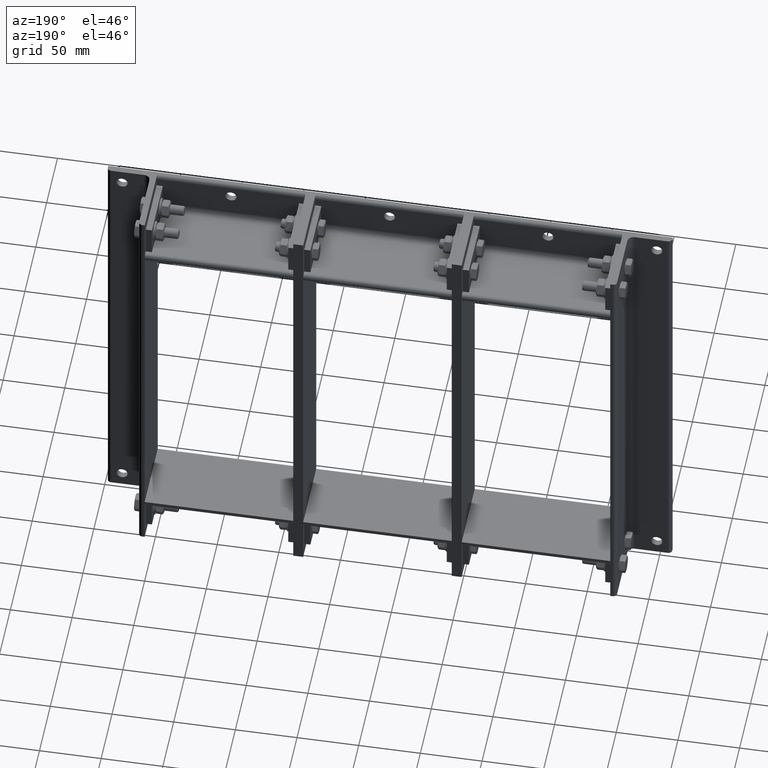
[diagram: clean part render]
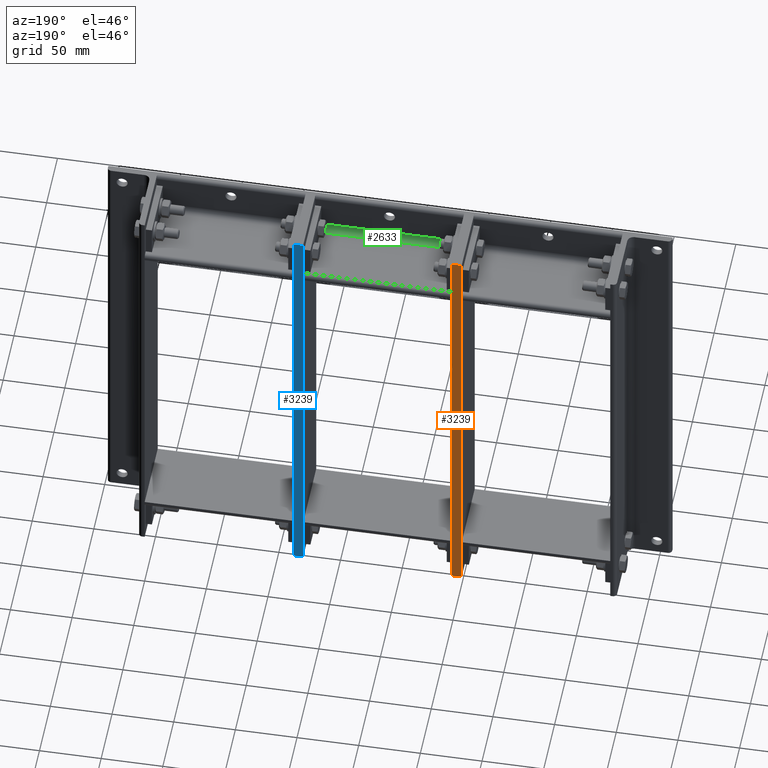
[diagram: same view with three faces highlighted in distinct colors, each labeled with its STEP entity id]
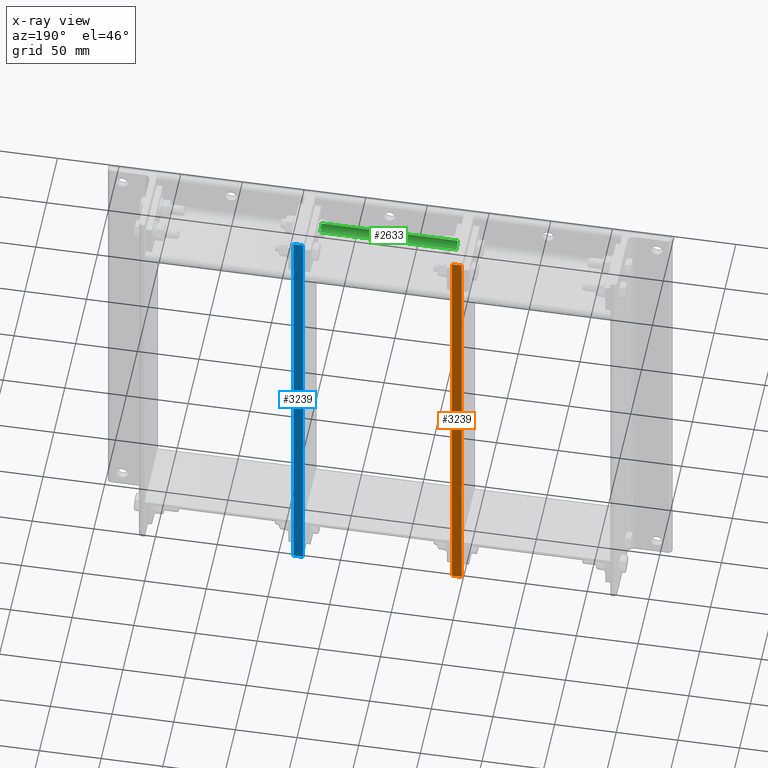
[diagram: x-ray of the same camera — body ghosted, the three highlighted faces saturated]
A machine part, auxiliary view with three faces highlighted in distinct colors.
The next image is the same camera in x-ray (body ghosted, the three faces saturated) — at least one of them is partly hidden behind the body in this view.
Their STEP definitions:

[orange] entity #3239 — the highlighted planar face has unit normal (-0, 1, 0).
#3164=CARTESIAN_POINT('',(-1.776357E-014,60.0,358.0));
#3165=VERTEX_POINT('',#3164);
#3172=CARTESIAN_POINT('',(-1.776357E-014,60.0,0.0));
#3173=VERTEX_POINT('',#3172);
#3174=CARTESIAN_POINT('',(-1.776357E-014,60.0,0.0));
#3175=DIRECTION('',(0.0,0.0,1.0));
#3176=VECTOR('',#3175,358.0);
#3177=LINE('',#3174,#3176);
#3178=EDGE_CURVE('',#3173,#3165,#3177,.T.);
#3209=CARTESIAN_POINT('',(-1.776357E-014,60.0,0.0));
#3210=DIRECTION('',(0.0,1.0,0.0));
#3211=DIRECTION('',(0.0,0.0,1.0));
#3212=AXIS2_PLACEMENT_3D('',#3209,#3210,#3211);
#3213=PLANE('',#3212);
#3214=CARTESIAN_POINT('',(7.999999999999981,60.0,358.0));
#3215=VERTEX_POINT('',#3214);
#3216=CARTESIAN_POINT('',(-1.776357E-014,60.0,358.0));
#3217=DIRECTION('',(1.0,0.0,0.0));
#3218=VECTOR('',#3217,7.999999999999998);
#3219=LINE('',#3216,#3218);
#3220=EDGE_CURVE('',#3165,#3215,#3219,.T.);
#3221=ORIENTED_EDGE('',*,*,#3220,.T.);
#3222=CARTESIAN_POINT('',(7.999999999999981,60.0,0.0));
#3223=VERTEX_POINT('',#3222);
#3224=CARTESIAN_POINT('',(7.999999999999981,60.0,0.0));
#3225=DIRECTION('',(0.0,0.0,1.0));
#3226=VECTOR('',#3225,358.0);
#3227=LINE('',#3224,#3226);
#3228=EDGE_CURVE('',#3223,#3215,#3227,.T.);
#3229=ORIENTED_EDGE('',*,*,#3228,.F.);
#3230=CARTESIAN_POINT('',(7.999999999999981,60.0,0.0));
#3231=DIRECTION('',(-1.0,0.0,0.0));
#3232=VECTOR('',#3231,7.999999999999998);
#3233=LINE('',#3230,#3232);
#3234=EDGE_CURVE('',#3223,#3173,#3233,.T.);
#3235=ORIENTED_EDGE('',*,*,#3234,.T.);
#3236=ORIENTED_EDGE('',*,*,#3178,.T.);
#3237=EDGE_LOOP('',(#3221,#3229,#3235,#3236));
#3238=FACE_OUTER_BOUND('',#3237,.T.);
#3239=ADVANCED_FACE('',(#3238),#3213,.T.);

[blue] entity #3239 — the highlighted planar face has unit normal (-0, 1, 0).
#3164=CARTESIAN_POINT('',(-1.776357E-014,60.0,358.0));
#3165=VERTEX_POINT('',#3164);
#3172=CARTESIAN_POINT('',(-1.776357E-014,60.0,0.0));
#3173=VERTEX_POINT('',#3172);
#3174=CARTESIAN_POINT('',(-1.776357E-014,60.0,0.0));
#3175=DIRECTION('',(0.0,0.0,1.0));
#3176=VECTOR('',#3175,358.0);
#3177=LINE('',#3174,#3176);
#3178=EDGE_CURVE('',#3173,#3165,#3177,.T.);
#3209=CARTESIAN_POINT('',(-1.776357E-014,60.0,0.0));
#3210=DIRECTION('',(0.0,1.0,0.0));
#3211=DIRECTION('',(0.0,0.0,1.0));
#3212=AXIS2_PLACEMENT_3D('',#3209,#3210,#3211);
#3213=PLANE('',#3212);
#3214=CARTESIAN_POINT('',(7.999999999999981,60.0,358.0));
#3215=VERTEX_POINT('',#3214);
#3216=CARTESIAN_POINT('',(-1.776357E-014,60.0,358.0));
#3217=DIRECTION('',(1.0,0.0,0.0));
#3218=VECTOR('',#3217,7.999999999999998);
#3219=LINE('',#3216,#3218);
#3220=EDGE_CURVE('',#3165,#3215,#3219,.T.);
#3221=ORIENTED_EDGE('',*,*,#3220,.T.);
#3222=CARTESIAN_POINT('',(7.999999999999981,60.0,0.0));
#3223=VERTEX_POINT('',#3222);
#3224=CARTESIAN_POINT('',(7.999999999999981,60.0,0.0));
#3225=DIRECTION('',(0.0,0.0,1.0));
#3226=VECTOR('',#3225,358.0);
#3227=LINE('',#3224,#3226);
#3228=EDGE_CURVE('',#3223,#3215,#3227,.T.);
#3229=ORIENTED_EDGE('',*,*,#3228,.F.);
#3230=CARTESIAN_POINT('',(7.999999999999981,60.0,0.0));
#3231=DIRECTION('',(-1.0,0.0,0.0));
#3232=VECTOR('',#3231,7.999999999999998);
#3233=LINE('',#3230,#3232);
#3234=EDGE_CURVE('',#3223,#3173,#3233,.T.);
#3235=ORIENTED_EDGE('',*,*,#3234,.T.);
#3236=ORIENTED_EDGE('',*,*,#3178,.T.);
#3237=EDGE_LOOP('',(#3221,#3229,#3235,#3236));
#3238=FACE_OUTER_BOUND('',#3237,.T.);
#3239=ADVANCED_FACE('',(#3238),#3213,.T.);

[green] entity #2633 — the highlighted cylindrical surface (edge-blend (fillet) strip) has radius 5 mm, axis along (-1, 0, -0).
#2397=CARTESIAN_POINT('',(4.999999999999988,9.999999999999991,5.000000000000018));
#2398=VERTEX_POINT('',#2397);
#2405=CARTESIAN_POINT('',(9.999999999999986,4.999999999999995,5.000000000000018));
#2406=VERTEX_POINT('',#2405);
#2407=CARTESIAN_POINT('',(9.999999999999986,9.999999999999993,5.000000000000018));
#2408=DIRECTION('',(0.0,0.0,-1.0));
#2409=DIRECTION('',(-0.707106781186547,-0.707106781186547,0.0));
#2410=AXIS2_PLACEMENT_3D('',#2407,#2408,#2409);
#2411=CIRCLE('',#2410,4.999999999999999);
#2412=EDGE_CURVE('',#2406,#2398,#2411,.T.);
#2436=CARTESIAN_POINT('',(9.999999999999986,4.999999999999995,115.49999999999999));
#2437=VERTEX_POINT('',#2436);
#2438=CARTESIAN_POINT('',(9.999999999999988,4.999999999999995,115.49999999999999));
#2439=DIRECTION('',(0.0,0.0,-1.0));
#2440=VECTOR('',#2439,110.49999999999997);
#2441=LINE('',#2438,#2440);
#2442=EDGE_CURVE('',#2437,#2406,#2441,.T.);
#2557=CARTESIAN_POINT('',(4.999999999999988,9.999999999999991,115.49999999999999));
#2558=VERTEX_POINT('',#2557);
#2559=CARTESIAN_POINT('',(9.999999999999986,9.999999999999993,115.49999999999999));
#2560=DIRECTION('',(0.0,0.0,1.0));
#2561=DIRECTION('',(-0.707106781186547,-0.707106781186547,0.0));
#2562=AXIS2_PLACEMENT_3D('',#2559,#2560,#2561);
#2563=CIRCLE('',#2562,4.999999999999999);
#2564=EDGE_CURVE('',#2558,#2437,#2563,.T.);
#2612=CARTESIAN_POINT('',(4.999999999999988,9.999999999999991,5.000000000000018));
#2613=DIRECTION('',(0.0,0.0,1.0));
#2614=VECTOR('',#2613,110.49999999999997);
#2615=LINE('',#2612,#2614);
#2616=EDGE_CURVE('',#2398,#2558,#2615,.T.);
#2622=CARTESIAN_POINT('',(9.999999999999986,9.999999999999993,0.0));
#2623=DIRECTION('',(0.0,0.0,1.0));
#2624=DIRECTION('',(-0.707106781186547,-0.707106781186547,0.0));
#2625=AXIS2_PLACEMENT_3D('',#2622,#2623,#2624);
#2626=CYLINDRICAL_SURFACE('',#2625,5.0);
#2627=ORIENTED_EDGE('',*,*,#2412,.T.);
#2628=ORIENTED_EDGE('',*,*,#2616,.T.);
#2629=ORIENTED_EDGE('',*,*,#2564,.T.);
#2630=ORIENTED_EDGE('',*,*,#2442,.T.);
#2631=EDGE_LOOP('',(#2627,#2628,#2629,#2630));
#2632=FACE_OUTER_BOUND('',#2631,.T.);
#2633=ADVANCED_FACE('',(#2632),#2626,.F.);